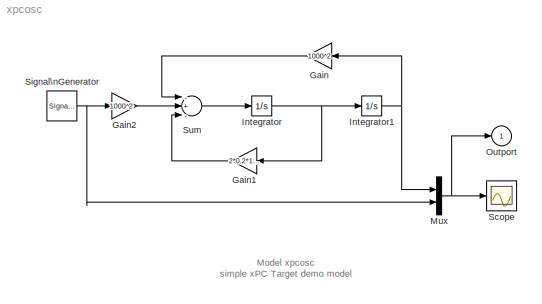
MODEL xpcosc
KIND model
BLOCK [Gain] Gain
  Gain = 1000^2
BLOCK [Gain] Gain1
  Gain = 2*0.2*1000
BLOCK [Gain] Gain2
  Gain = 1000^2
BLOCK [Integrator] Integrator
  Ports = [1, 1]
BLOCK [Integrator] Integrator1
  Ports = [1, 1]
BLOCK [Mux] Mux
  DisplayOption = bar
  Inputs = 2
  Ports = [2, 1]
BLOCK [Outport] Outport
  IconDisplay = Port number
  InitialOutput = 0
BLOCK [Scope] Scope
  DataFormat = Array
  NumInputPorts = 1
  Ports = [1]
  TickLabels = on
  TimeRange = 0.200000
  YMax = 12
  YMin = -12
BLOCK [SignalGenerator] Signal\nGenerator
  Amplitude = 4
  Frequency = 20
  Ports = [0, 1]
  WaveForm = square
BLOCK [Sum] Sum
  Inputs = -+-
  Ports = [3, 1]
ANNOTATION (root): Model xpcosc\nsimple xPC Target demo model
LINE Gain1:1 -> Sum:3
LINE Gain2:1 -> Sum:2
LINE Gain:1 -> Sum:1
NET Integrator1:1 -> Gain:1, Mux:1
NET Integrator:1 -> Gain1:1, Integrator1:1
NET Mux:1 -> Outport:1, Scope:1
NET Signal\nGenerator:1 -> Gain2:1, Mux:2
LINE Sum:1 -> Integrator:1
note: NET lines group one-source signal fan-out (src -> all destinations, sorted); 1:1 wires keep LINE
